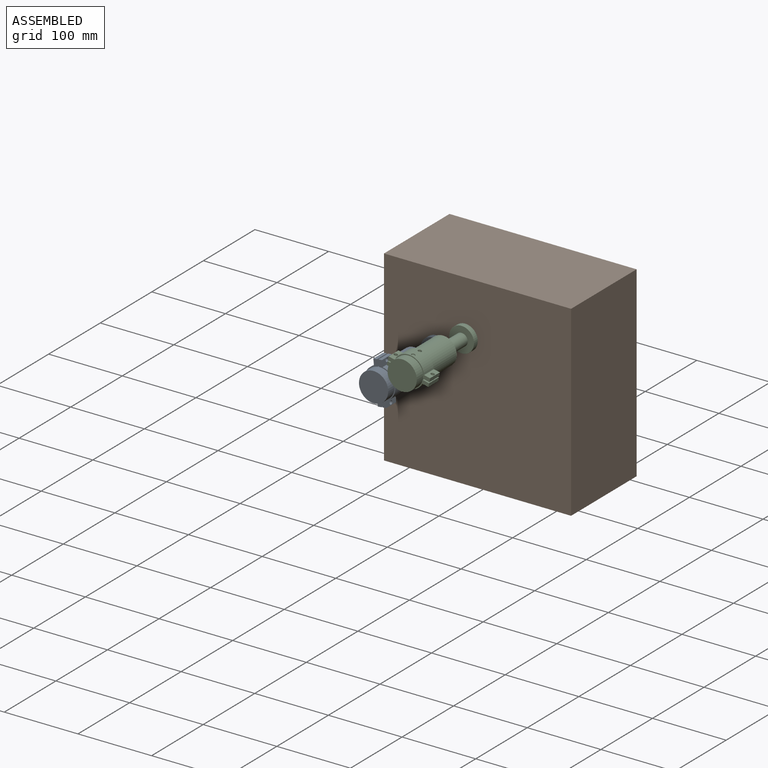
[diagram: assembled view]
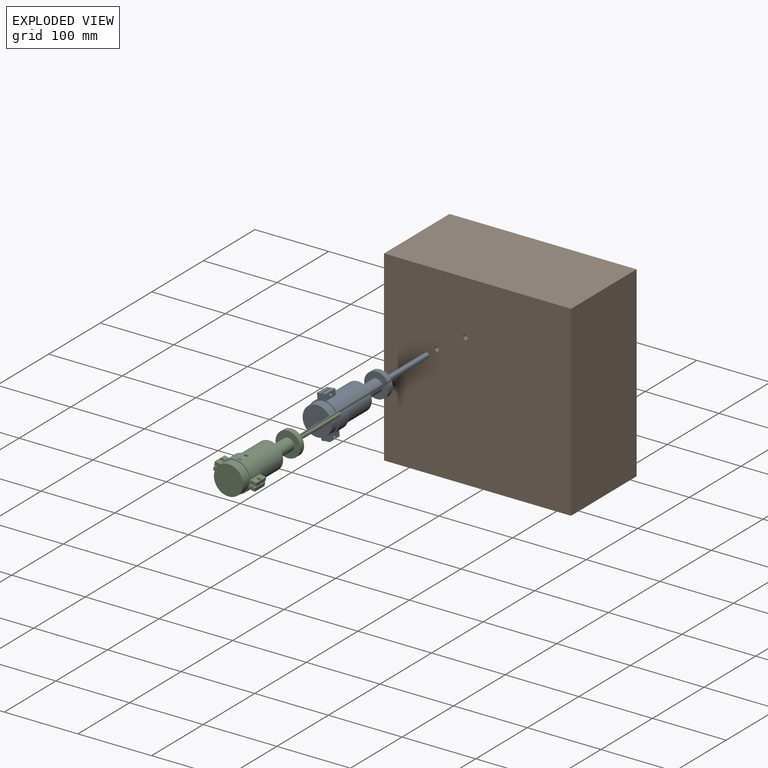
[diagram: exploded view]
GUIDED TOUR — MATED ASSEMBLY WITH SUBASSEMBLIES (Onshape document 07115e8afe3c7d327636c35b, AutoMate assembly 07115e8afe3c7d327636c35b_34420395dc92f201b934ebf9_98a5e769deac01c4e7849072_default)

This assembly has 7 component occurrences arranged in 3 top-level units: 1 individual components plus 2 subassemblies (S0, S1). The tour has two levels: first the top level, where each subassembly is treated as one rigid unit; then each subassembly is toured internally in its own section (nesting deeper than one subassembly level is flattened into its subassembly's section).

Components are labeled P0..P6 across the whole record; subassembly units are labeled S0..S1. A mate is a constraint between two units; its type names the relative motion it leaves free:
  CYLINDRICAL — leaves both rotation about and translation along the listed axis free,
  PARALLEL — keeps the two listed directions parallel,
  PLANAR — leaves sliding in the plane through the listed point (normal = the listed direction) and rotation about that normal free.
Axis/direction vectors are unit vectors and 'through' points are millimeter coordinates, both in the assembly's world frame.

TOP-LEVEL MATES (between units; each subassembly's internal mates are listed in its own section)
  1. PLANAR "Planar 2": S1 <-> P1, direction (0.000, 1.000, 0.000) through (-115.39, -126.83, 44.10) mm
  2. PLANAR "Planar 1": S0 <-> P1, direction (0.000, 1.000, 0.000) through (-154.22, -126.83, 19.44) mm
  3. CYLINDRICAL "Cylindrical 1": S0 <-> P1, axis (0.000, 1.000, 0.000) through (-154.22, -81.75, 19.44) mm
  4. CYLINDRICAL "Cylindrical 2": S1 <-> P1, axis (0.000, 1.000, 0.000) through (-115.39, -81.75, 44.10) mm

TOP-LEVEL ASSEMBLY ORDER
  1. P1 — the base component [order verified]
  2. S1 [order verified]
  3. S0 [order verified]
Order-tag legend:
  [order verified] — this step's position reverses a verified removal order: the component was checked to insert without passing through the ones already placed.

Of the 7 component occurrences, 3 carry the full construction recipe — the FeatureScript program that regenerates the part's solid from scratch; the rest are supplied as boundary geometry only. Each toured unit is shown spotlighted twice — assembled, then exploded with a leader line back to its socket (green = recipe-attached component, orange = geometry-only, blue = subassembly unit; the rest desaturated gray).
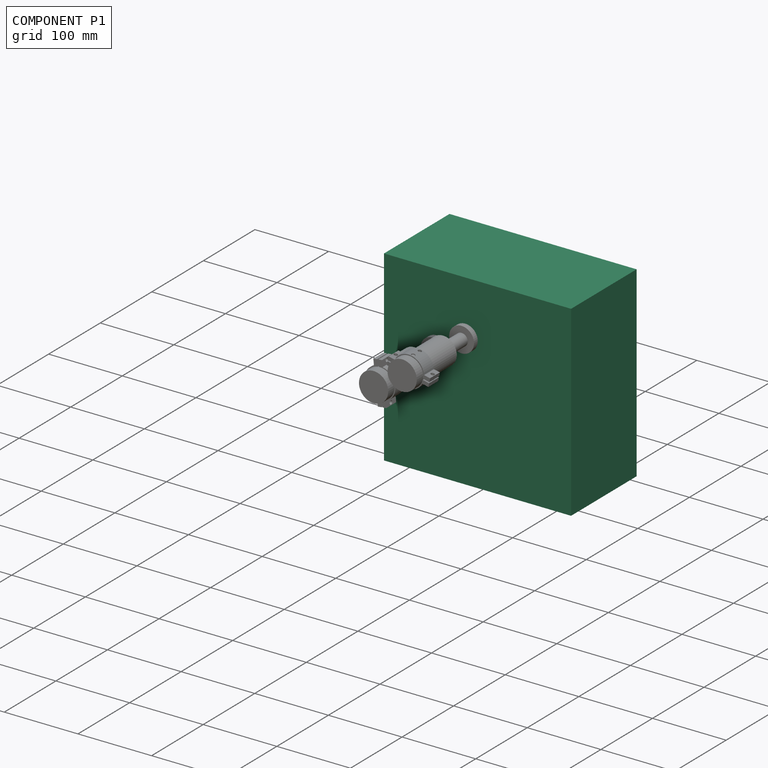
[diagram: component P1 — assembled]
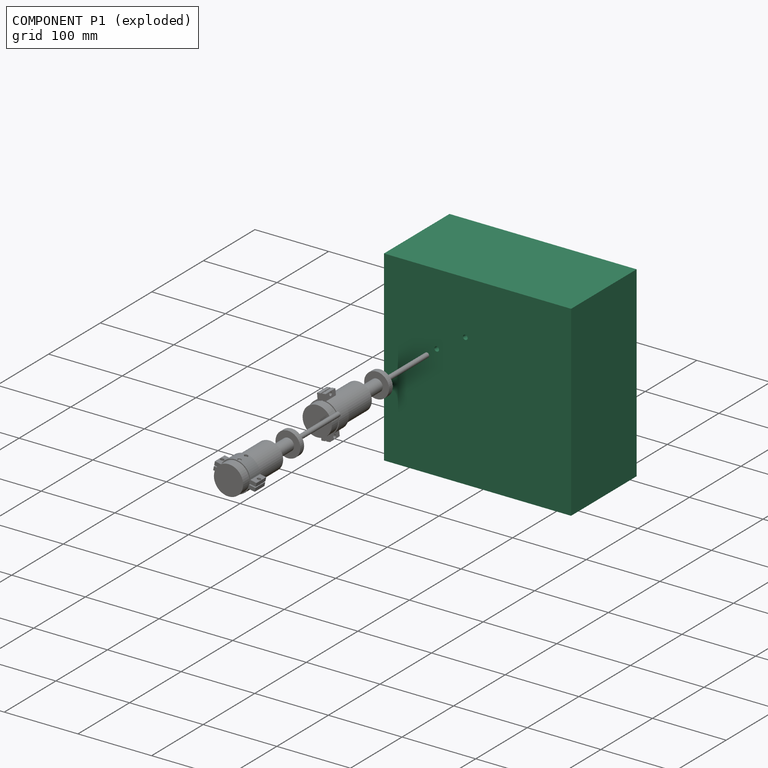
[diagram: component P1 — exploded]
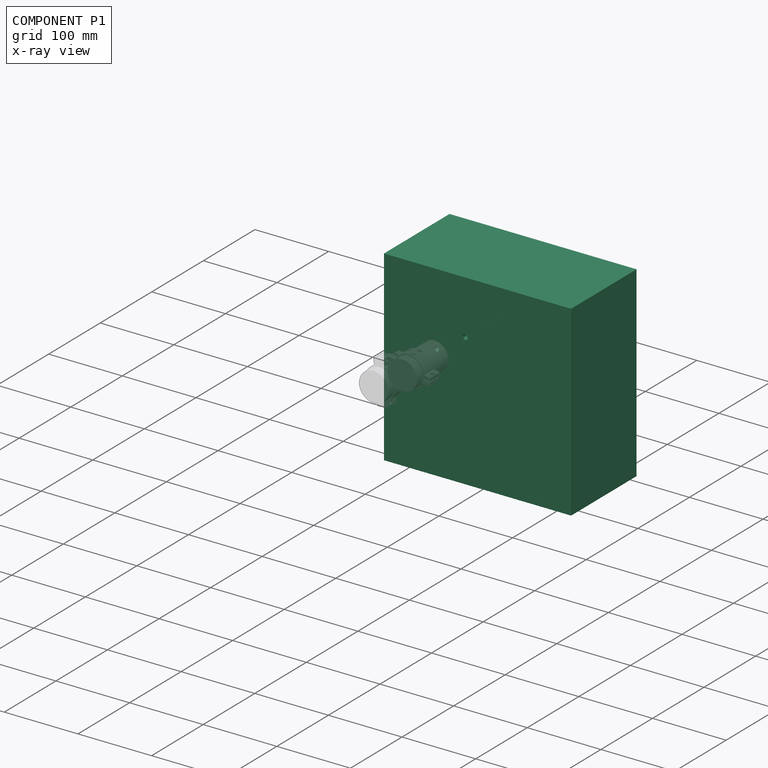
[diagram: component P1 — x-ray view]
COMPONENT P1 — recipe-attached (CADFS 00997449, mesh-verified: the recipe's output STEP matches this component's geometry to below the mesh-comparison resolution (tessellation chordal tolerance ~0.572 mm)).
Held by: PLANAR mate "Planar 2" to P3; PLANAR mate "Planar 1" to P0; CYLINDRICAL mate "Cylindrical 1" to P0; CYLINDRICAL mate "Cylindrical 2" to P3.
Construction recipe (FeatureScript — the CAD program that rebuilds this solid; sketch coordinates are in the units given by the * unit suffixes, e.g. mm):

FeatureScript 1511;
import(path : "onshape/std/geometry.fs", version : "1511.0");
import(path : "onshape/std/common.fs", version : "1511.0");
const mm = millimeter;
const VERTEX = EntityType.VERTEX;
const EDGE = EntityType.EDGE;
const FACE = EntityType.FACE;
const BODY = EntityType.BODY;
function v(x, y){return vector(x, y);}
function OD(order){return orderDisambiguation(order);}
function OSD(set){return originalSetDisambiguation(set);}
function TD(topology){return topologyDisambiguation(topology);}
function TDD(query){return trueDependencyDisambiguation(query);}
function sQuery(a, b, c) {return sketchEntityQuery(a, b, c);}

annotation { "Feature Type Name" : "Feature", "Feature Type Description" : "" }
export const myFeature = defineFeature(function(context is Context, id is Id, definition is map)
    precondition{}
    {
        {
            var Q0;
            Q0=qCreatedBy(makeId("Front.planeOp"),FACE);
            var sketch = newSketch(context, id + "F0", { "sketchPlane" : qUnion([Q0])});
            skLineSegment(sketch, "E0.bottom", {"start": v(-127, 127) * mm, "end": v(127, 127) * mm});
            skLineSegment(sketch, "E0.top", {"start": v(-127, -127) * mm, "end": v(127, -127) * mm});
            skLineSegment(sketch, "E0.left", {"start": v(-127, 127) * mm, "end": v(-127, -127) * mm});
            skLineSegment(sketch, "E0.right", {"start": v(127, 127) * mm, "end": v(127, -127) * mm});
            skPoint(sketch, "E0.middle", {"position": v(0, 0) * mm});
            skCircle(sketch, "E1", {"center": v(-55.42, 28.87) * mm, "radius": 3.18 * mm});
            skCircle(sketch, "E2", {"center": v(-16.6, 53.54) * mm, "radius": 3.18 * mm});
            skSolve(sketch);
        }
        {
            var Q0;
            Q0 = qSketchRegion(id + "F0", true);
            extrude(context, id + "F1", {"entities" : qUnion([Q0]), "depth" : 127 * mm, "offsetDistance" : 25.4 * mm});
        }
    });
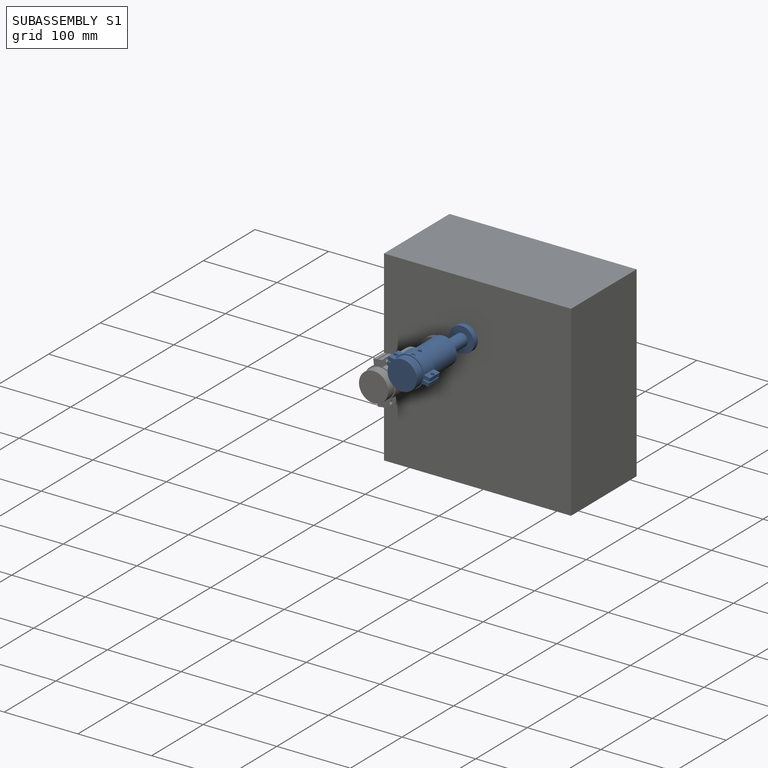
[diagram: subassembly S1 — assembled]
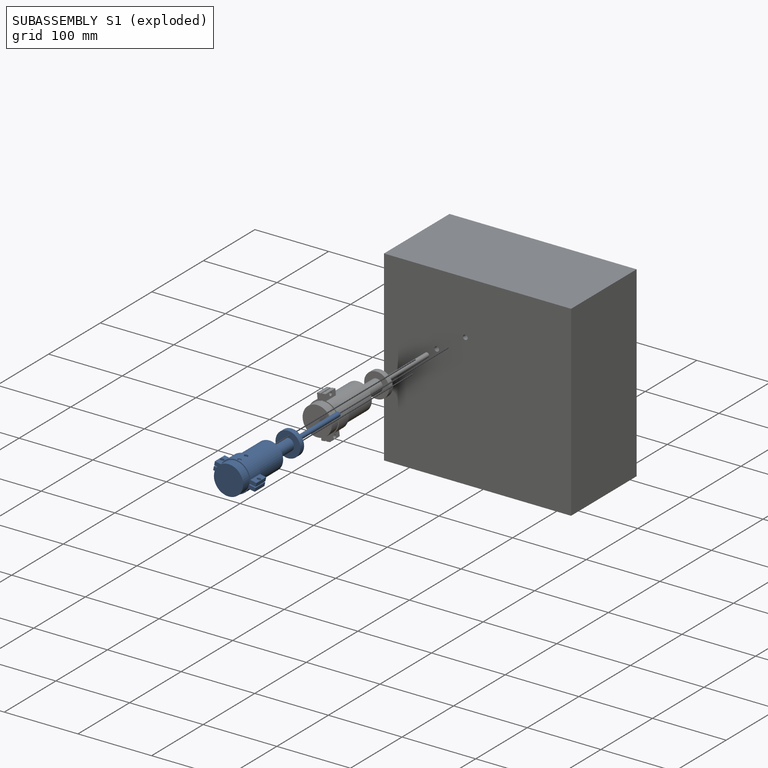
[diagram: subassembly S1 — exploded]
SUBASSEMBLY S1 — 3 components (P3, P5, P6), of which 1 recipe-attached; toured below.
Held by: PLANAR mate "Planar 2" to P1; CYLINDRICAL mate "Cylindrical 2" to P1.
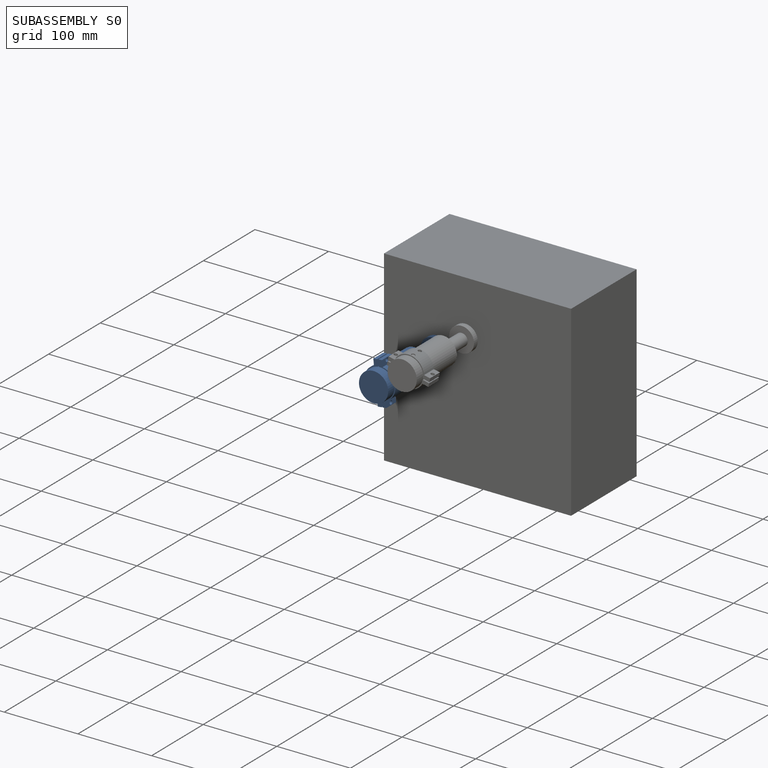
[diagram: subassembly S0 — assembled]
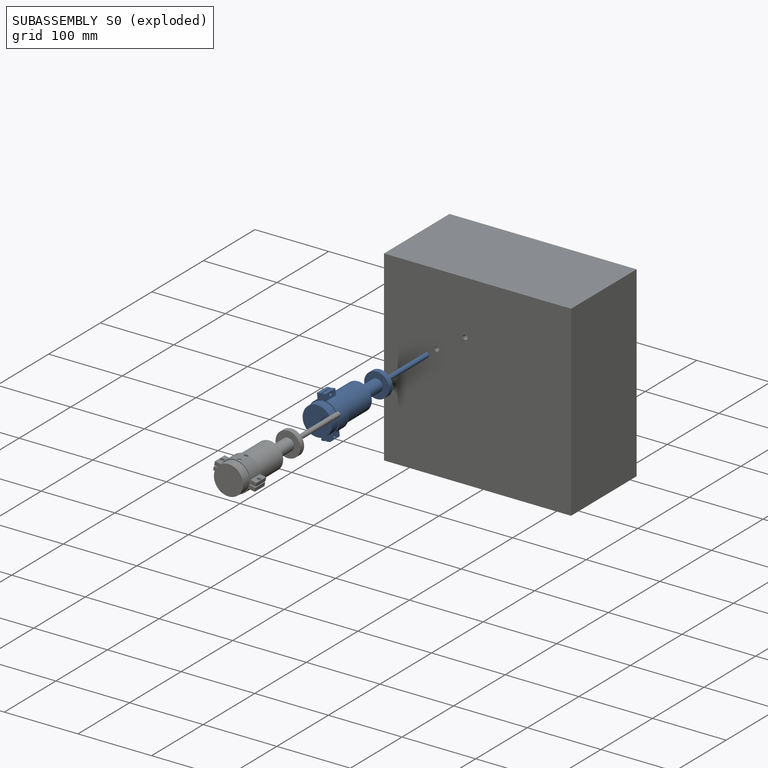
[diagram: subassembly S0 — exploded]
SUBASSEMBLY S0 — 3 components (P0, P2, P4), of which 1 recipe-attached; toured below.
Held by: PLANAR mate "Planar 1" to P1; CYLINDRICAL mate "Cylindrical 1" to P1.
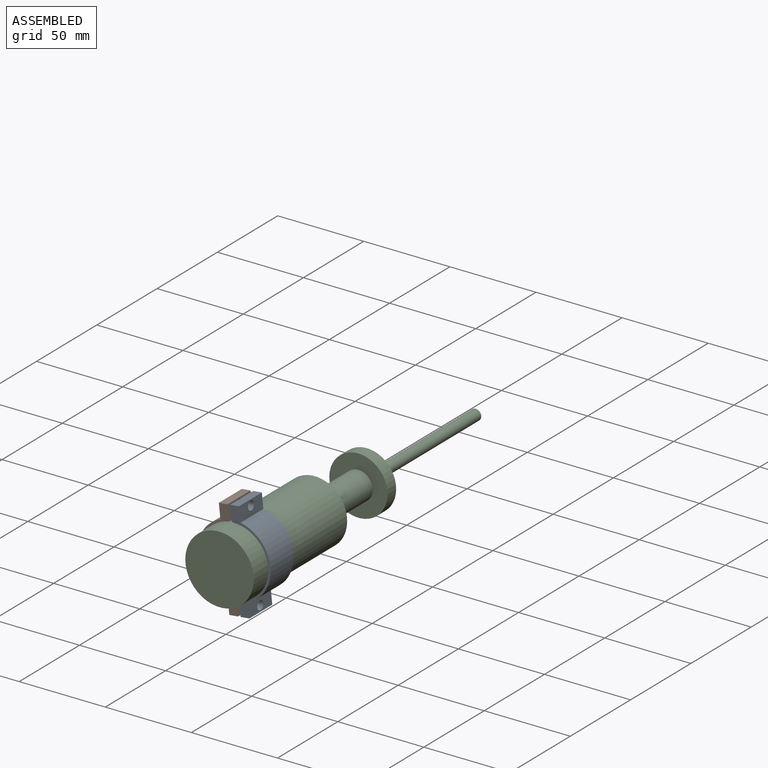
[diagram: subassembly S0 — assembled view]
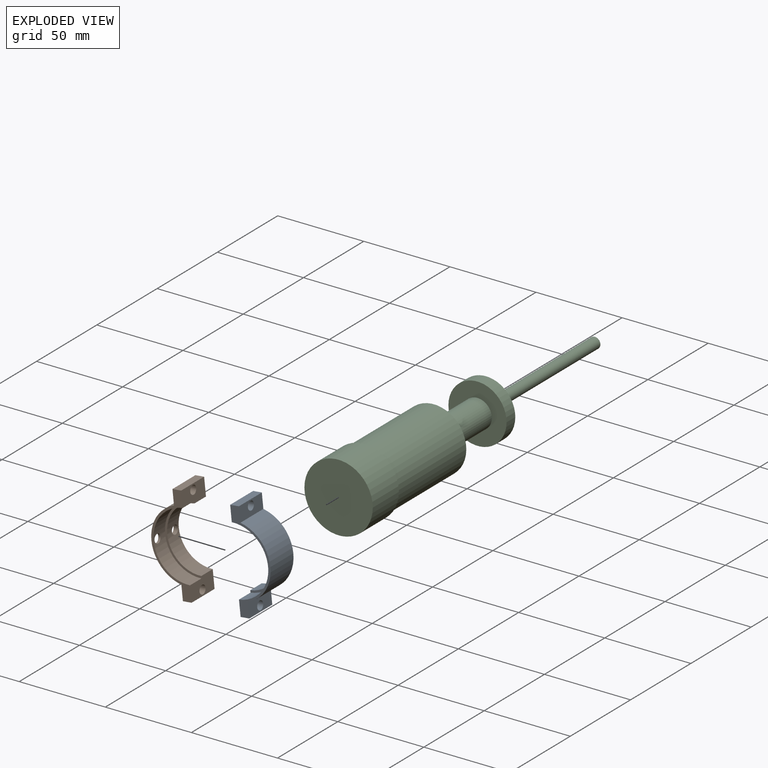
[diagram: subassembly S0 — exploded view]
SUBASSEMBLY S0 TOUR — 3 components, shown here in isolation at its own camera.

INTERNAL MATES
  1. PLANAR "Planar 1": P0 <-> P2, direction (-0.105, 0.000, 0.994) through (-153.97, -227.62, 48.41) mm
  2. PLANAR "Planar 2": P0 <-> P2, direction (0.000, -1.000, 0.000) through (-147.91, -237.14, -8.84) mm
  3. CYLINDRICAL "Cylindrical 1": P0 <-> P4, axis (0.000, -1.000, 0.000) through (-154.22, -222.86, 19.44) mm
  4. PARALLEL "Parallel 1": P0 <-> P2, direction (-0.994, 0.000, -0.105) through (-150.96, -227.28, -4.15) mm
  5. PLANAR "Planar 1": P0 <-> P4, direction (0.000, -1.000, 0.000) through (-151.44, -227.62, 0.38) mm
  6. PLANAR "Planar 1": P0 <-> P4, direction (0.000, -1.000, 0.000) through (-151.44, -227.62, 0.38) mm
  7. CYLINDRICAL "Cylindrical 1": P0 <-> P4, axis (0.000, -1.000, 0.000) through (-154.22, -222.86, 19.44) mm
  8. PARALLEL "Parallel 1": P0 <-> P2, direction (-0.994, 0.000, -0.105) through (-150.96, -227.28, -4.15) mm
  9. PLANAR "Planar 2": P0 <-> P2, direction (0.000, -1.000, 0.000) through (-147.91, -237.14, -8.84) mm
  10. PLANAR "Planar 1": P0 <-> P2, direction (-0.105, 0.000, 0.994) through (-153.97, -227.62, 48.41) mm

ASSEMBLY ORDER (within the subassembly)
  1. P0 — the base component [order verified]
  2. P2 [order verified]
  3. P4 [order verified]
(P2, P4 verified with a relaxed clearance tolerance: the source model stores slight part interference there.)
Order-tag legend:
  [order verified] — this step's position reverses a verified removal order: the component was checked to insert without passing through the ones already placed.
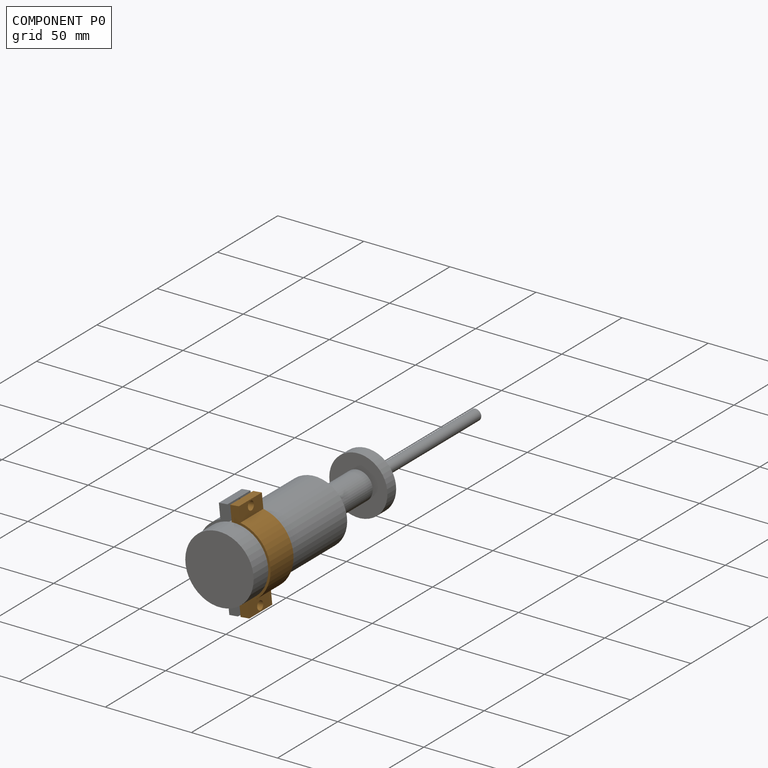
[diagram: component P0 — assembled]
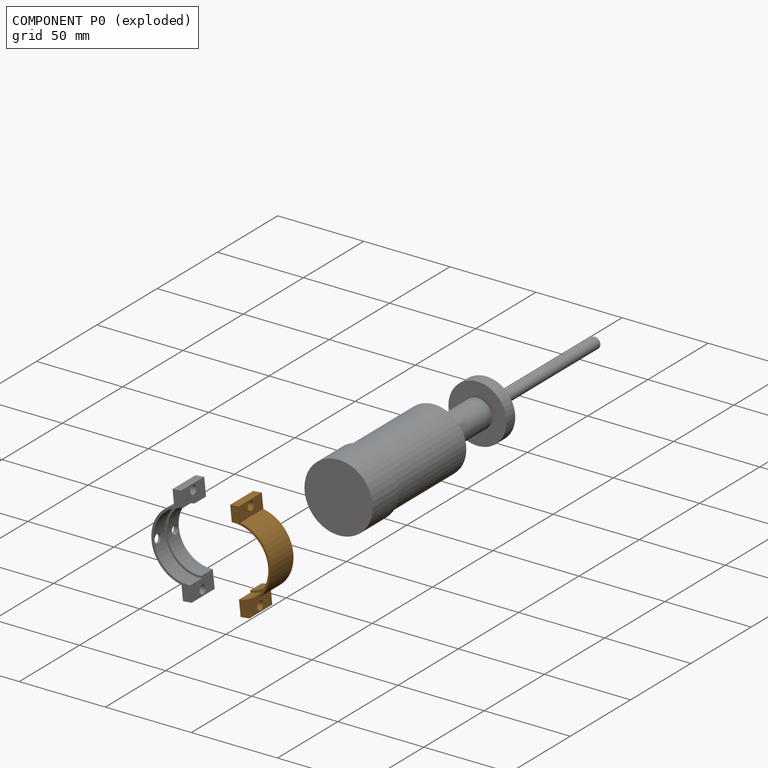
[diagram: component P0 — exploded]
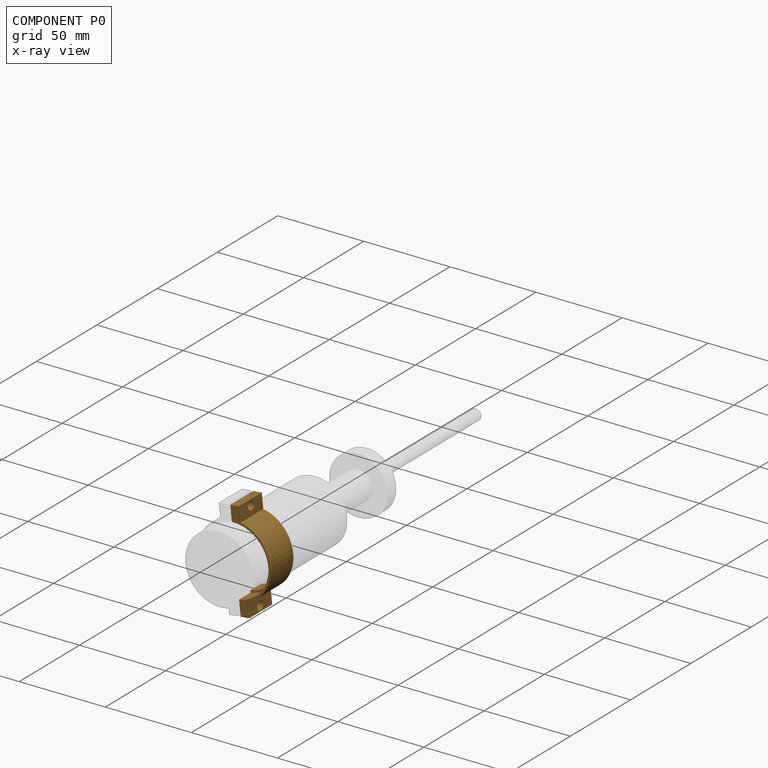
[diagram: component P0 — x-ray view]
COMPONENT P0 — geometry summary (no construction recipe available for this part):
  bounding box: 57.6 x 20.4 x 19.1 mm
  B-rep topology: 1 solid, 14 faces, 72 edges
  volume: 3596 mm^3 (16% of its bounding box)
  symmetry: mirror-symmetric across its x mid-plane
Held by: PLANAR mate "Planar 1" to P2; PLANAR mate "Planar 2" to P2; CYLINDRICAL mate "Cylindrical 1" to P4; PARALLEL mate "Parallel 1" to P2; PLANAR mate "Planar 1" to P4; PLANAR mate "Planar 1" to P4; CYLINDRICAL mate "Cylindrical 1" to P4; PARALLEL mate "Parallel 1" to P2; PLANAR mate "Planar 2" to P2; PLANAR mate "Planar 1" to P2.
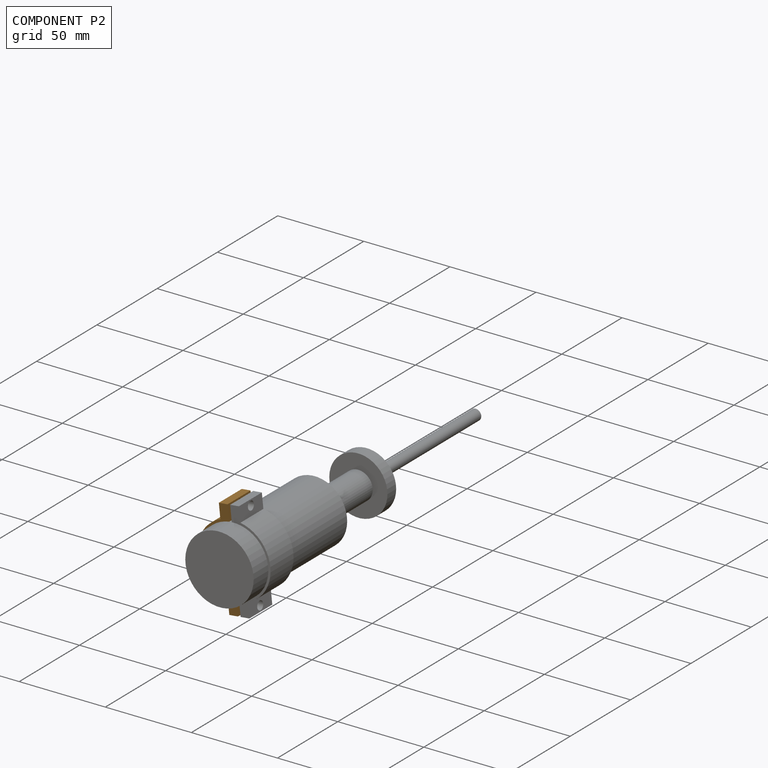
[diagram: component P2 — assembled]
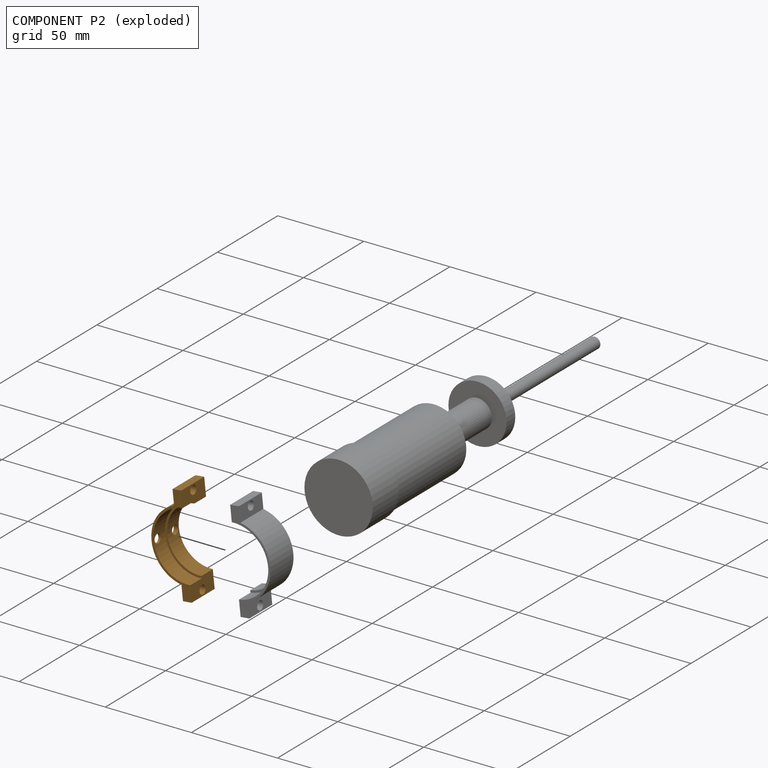
[diagram: component P2 — exploded]
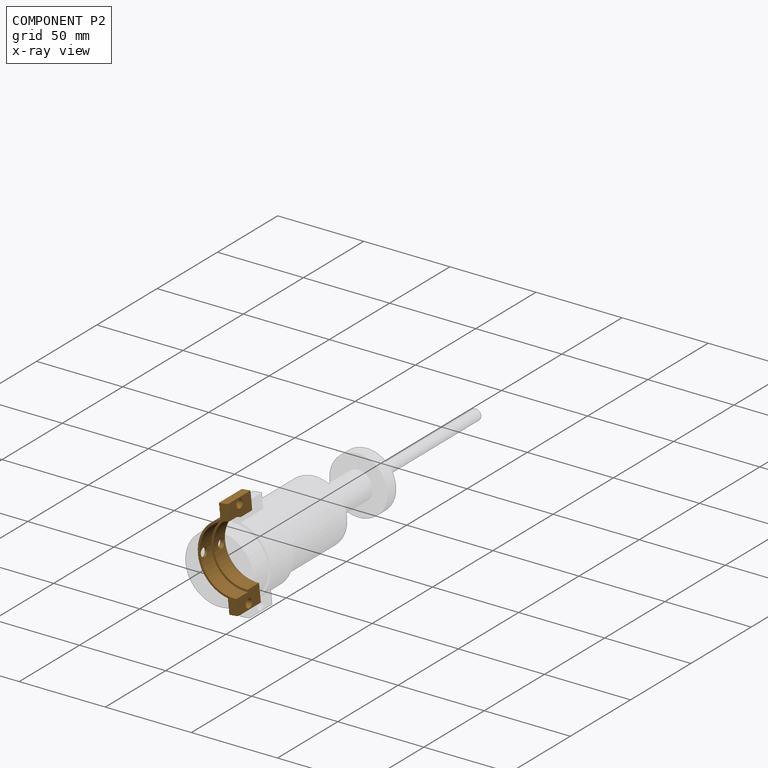
[diagram: component P2 — x-ray view]
COMPONENT P2 — geometry summary (no construction recipe available for this part):
  bounding box: 57.6 x 20.4 x 19.1 mm
  B-rep topology: 1 solid, 16 faces, 88 edges
  volume: 3521 mm^3 (16% of its bounding box)
  symmetry: mirror-symmetric across its x mid-plane
Held by: PLANAR mate "Planar 1" to P0; PLANAR mate "Planar 2" to P0; PARALLEL mate "Parallel 1" to P0; PARALLEL mate "Parallel 1" to P0; PLANAR mate "Planar 2" to P0; PLANAR mate "Planar 1" to P0.
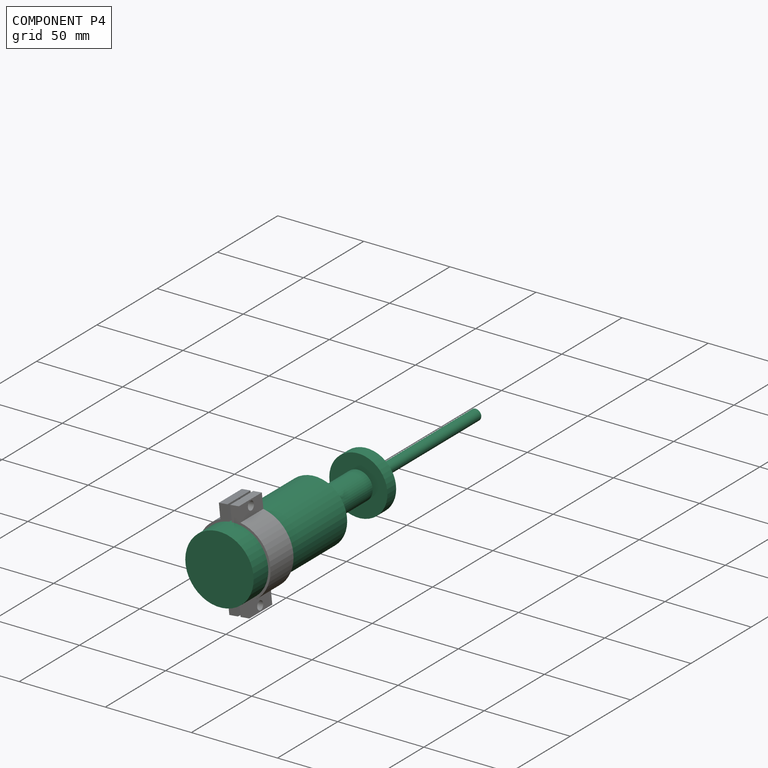
[diagram: component P4 — assembled]
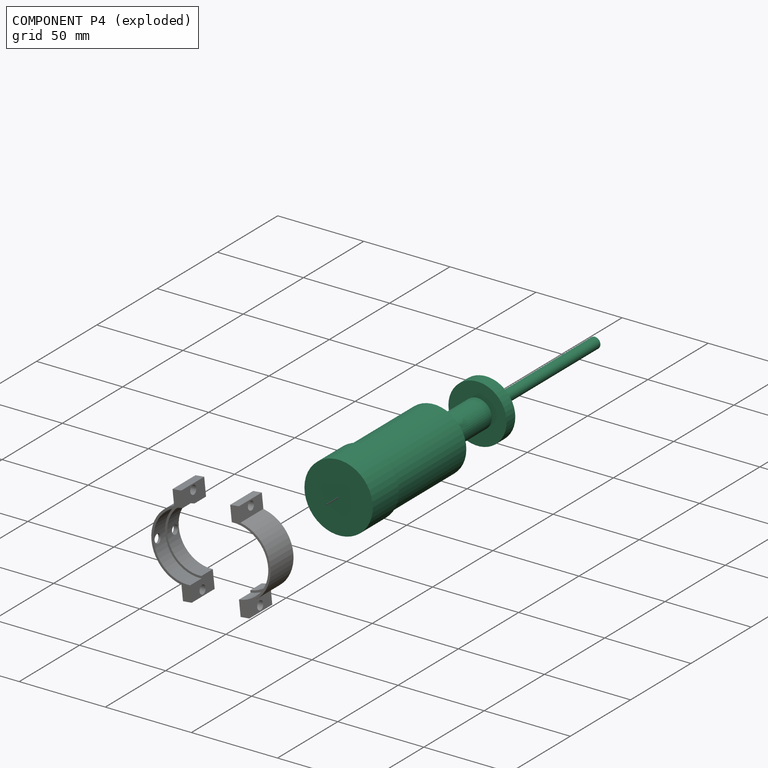
[diagram: component P4 — exploded]
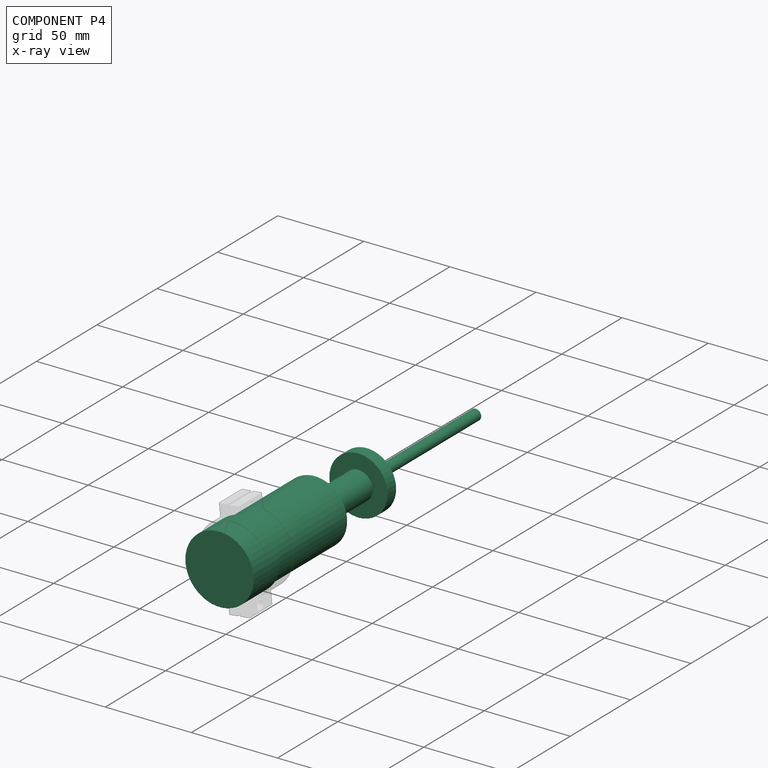
[diagram: component P4 — x-ray view]
COMPONENT P4 — recipe-attached (CADFS 00997448, mesh-verified: the recipe's output STEP matches this component's geometry to below the mesh-comparison resolution (tessellation chordal tolerance ~0.33 mm)).
Held by: CYLINDRICAL mate "Cylindrical 1" to P0; PLANAR mate "Planar 1" to P0; PLANAR mate "Planar 1" to P0; CYLINDRICAL mate "Cylindrical 1" to P0.
Construction recipe (FeatureScript — the CAD program that rebuilds this solid; sketch coordinates are in the units given by the * unit suffixes, e.g. mm):

FeatureScript 1511;
import(path : "onshape/std/geometry.fs", version : "1511.0");
import(path : "onshape/std/common.fs", version : "1511.0");
const mm = millimeter;
const VERTEX = EntityType.VERTEX;
const EDGE = EntityType.EDGE;
const FACE = EntityType.FACE;
const BODY = EntityType.BODY;
function v(x, y){return vector(x, y);}
function OD(order){return orderDisambiguation(order);}
function OSD(set){return originalSetDisambiguation(set);}
function TD(topology){return topologyDisambiguation(topology);}
function TDD(query){return trueDependencyDisambiguation(query);}
function sQuery(a, b, c) {return sketchEntityQuery(a, b, c);}

annotation { "Feature Type Name" : "Feature", "Feature Type Description" : "" }
export const myFeature = defineFeature(function(context is Context, id is Id, definition is map)
    precondition{}
    {
        {
            var Q0;
            Q0=qCreatedBy(makeId("Front.planeOp"),FACE);
            var sketch = newSketch(context, id + "F0", { "sketchPlane" : qUnion([Q0])});
            skLineSegment(sketch, "E0", {"start": v(-90.85, 0) * mm, "end": v(121.75, 0) * mm});
            skLineSegment(sketch, "E1", {"start": v(121.75, 0) * mm, "end": v(121.75, 19.85) * mm});
            skLineSegment(sketch, "E2", {"start": v(121.75, 19.85) * mm, "end": v(100.1, 19.85) * mm});
            skLineSegment(sketch, "E3", {"start": v(100.1, 19.85) * mm, "end": v(100.1, 18.64) * mm});
            skLineSegment(sketch, "E4", {"start": v(100.1, 18.64) * mm, "end": v(42.45, 18.64) * mm});
            skLineSegment(sketch, "E5", {"start": v(42.45, 18.64) * mm, "end": v(42.45, 8.32) * mm});
            skLineSegment(sketch, "E6", {"start": v(42.45, 8.32) * mm, "end": v(6.56, 8.32) * mm});
            skLineSegment(sketch, "E7", {"start": v(6.56, 8.32) * mm, "end": v(6.56, 16.9) * mm});
            skLineSegment(sketch, "E8", {"start": v(6.56, 16.9) * mm, "end": v(-0.68, 16.9) * mm});
            skLineSegment(sketch, "E9", {"start": v(-0.68, 16.9) * mm, "end": v(-0.68, 3.18) * mm});
            skLineSegment(sketch, "E10", {"start": v(-0.68, 3.18) * mm, "end": v(-90.85, 3.17) * mm});
            skLineSegment(sketch, "E11", {"start": v(-90.85, 3.17) * mm, "end": v(-90.85, 0) * mm});
            skSolve(sketch);
        }
        {
            var Q0;
            Q0 = qSketchRegion(id + "F0", true);
            var Q1;
            Q1=sQuery(id+"F0.wireOp",EDGE,"E0");
            revolve(context, id + "F1", {"surfaceOperationType" : NewSurfaceOperationType.NEW, "entities" : qUnion([Q0]), "axis" : qUnion([Q1]), "revolveType" : RevolveType.FULL});
        }
    });
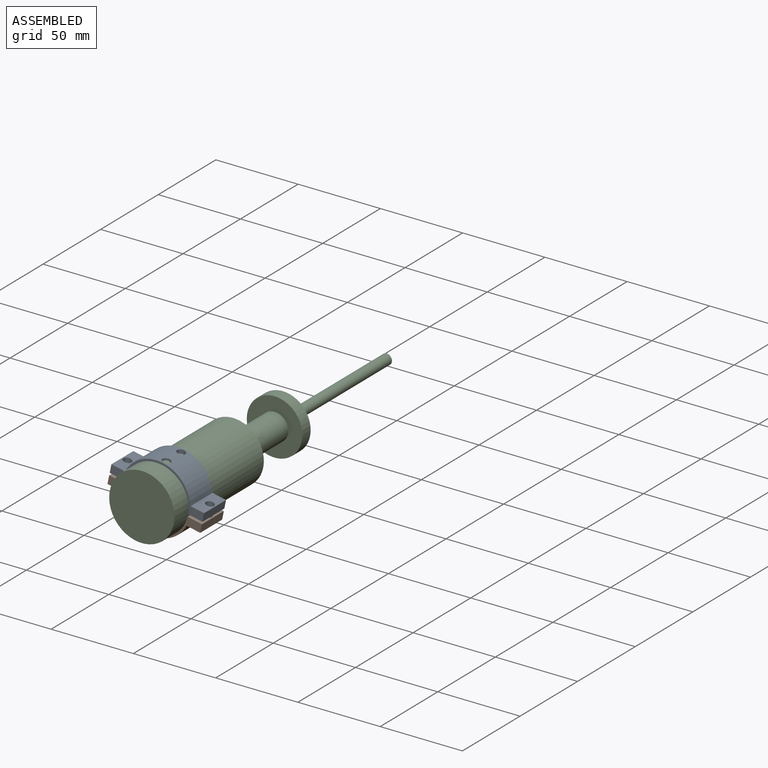
[diagram: subassembly S1 — assembled view]
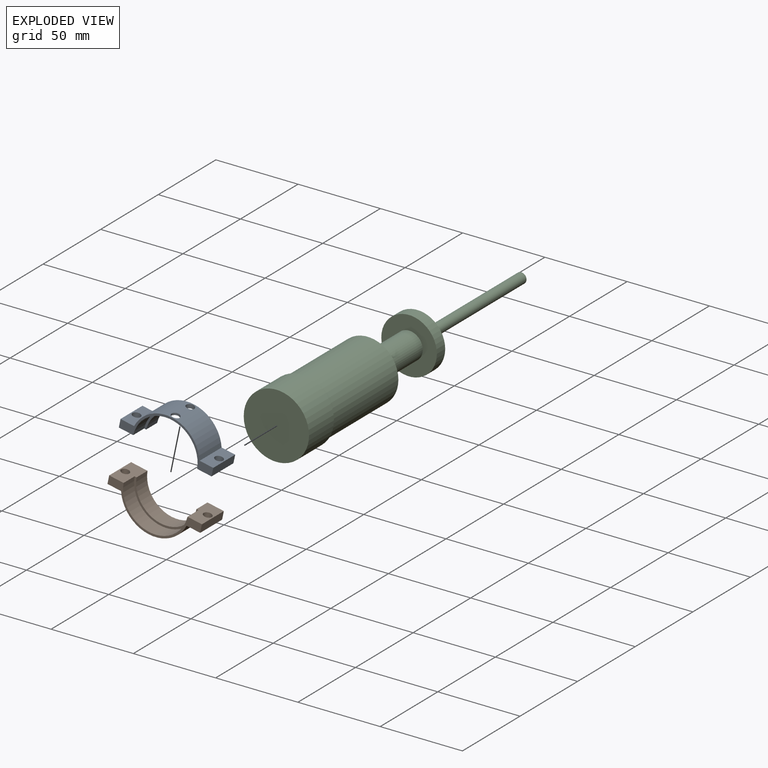
[diagram: subassembly S1 — exploded view]
SUBASSEMBLY S1 TOUR — 3 components, shown here in isolation at its own camera.

INTERNAL MATES
  1. PLANAR "Planar 1": P5 <-> P3, direction (0.979, 0.000, -0.205) through (-87.89, -227.62, 34.96) mm
  2. PLANAR "Planar 2": P5 <-> P3, direction (0.000, -1.000, 0.000) through (-144.24, -237.14, 46.78) mm
  3. CYLINDRICAL "Cylindrical 1": P5 <-> P6, axis (0.000, -1.000, 0.000) through (-115.39, -222.86, 44.10) mm
  4. PARALLEL "Parallel 1": P5 <-> P3, direction (0.205, 0.000, 0.979) through (-138.84, -227.28, 48.24) mm
  5. PLANAR "Planar 1": P5 <-> P6, direction (0.000, -1.000, 0.000) through (-134.38, -227.62, 47.30) mm
  6. PLANAR "Planar 1": P5 <-> P6, direction (0.000, -1.000, 0.000) through (-134.38, -227.62, 47.30) mm
  7. PLANAR "Planar 2": P5 <-> P3, direction (0.000, -1.000, 0.000) through (-144.24, -237.14, 46.78) mm
  8. PARALLEL "Parallel 1": P5 <-> P3, direction (0.205, 0.000, 0.979) through (-138.84, -227.28, 48.24) mm
  9. CYLINDRICAL "Cylindrical 1": P5 <-> P6, axis (0.000, -1.000, 0.000) through (-115.39, -222.86, 44.10) mm
  10. PLANAR "Planar 1": P5 <-> P3, direction (0.979, 0.000, -0.205) through (-87.89, -227.62, 34.96) mm

ASSEMBLY ORDER (within the subassembly)
  1. P5 — the base component [order verified]
  2. P3 [order verified]
  3. P6 [order verified]
(P3, P6 verified with a relaxed clearance tolerance: the source model stores slight part interference there.)
Order-tag legend:
  [order verified] — this step's position reverses a verified removal order: the component was checked to insert without passing through the ones already placed.
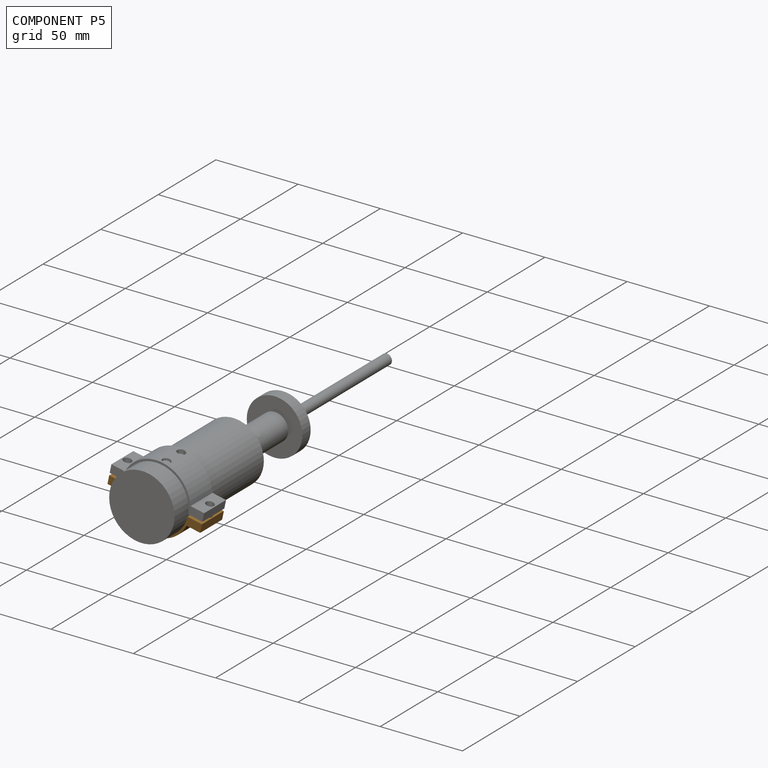
[diagram: component P5 — assembled]
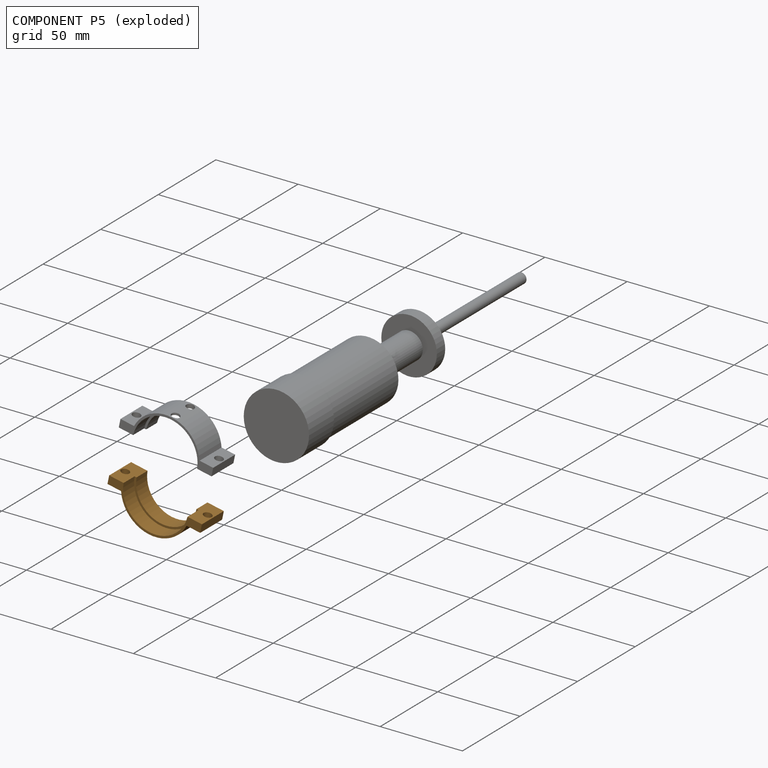
[diagram: component P5 — exploded]
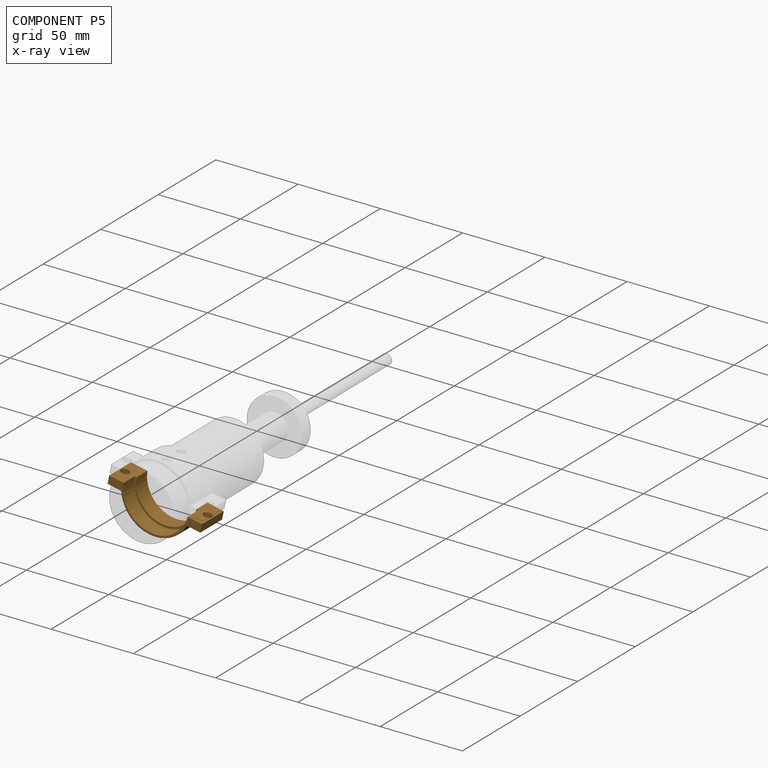
[diagram: component P5 — x-ray view]
COMPONENT P5 — geometry summary (no construction recipe available for this part):
  bounding box: 57.6 x 20.4 x 19.1 mm
  B-rep topology: 1 solid, 14 faces, 72 edges
  volume: 3596 mm^3 (16% of its bounding box)
  symmetry: mirror-symmetric across its x mid-plane
Held by: PLANAR mate "Planar 1" to P3; PLANAR mate "Planar 2" to P3; CYLINDRICAL mate "Cylindrical 1" to P6; PARALLEL mate "Parallel 1" to P3; PLANAR mate "Planar 1" to P6; PLANAR mate "Planar 1" to P6; PLANAR mate "Planar 2" to P3; PARALLEL mate "Parallel 1" to P3; CYLINDRICAL mate "Cylindrical 1" to P6; PLANAR mate "Planar 1" to P3.
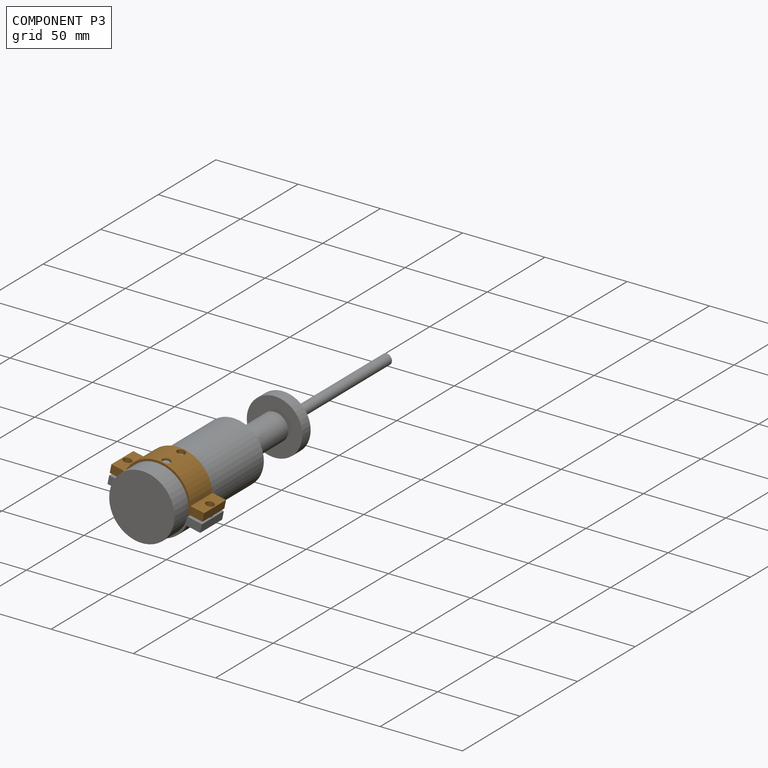
[diagram: component P3 — assembled]
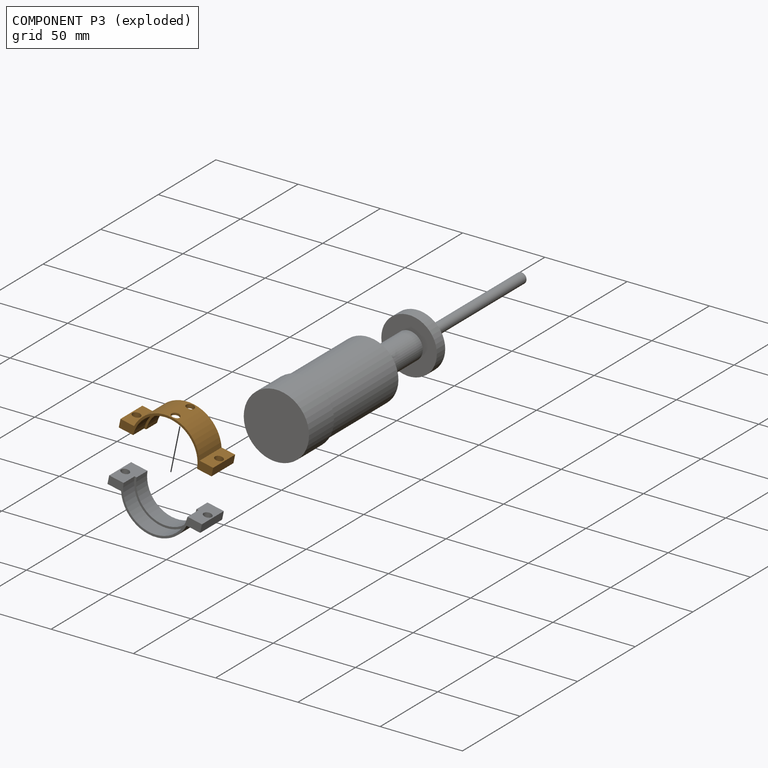
[diagram: component P3 — exploded]
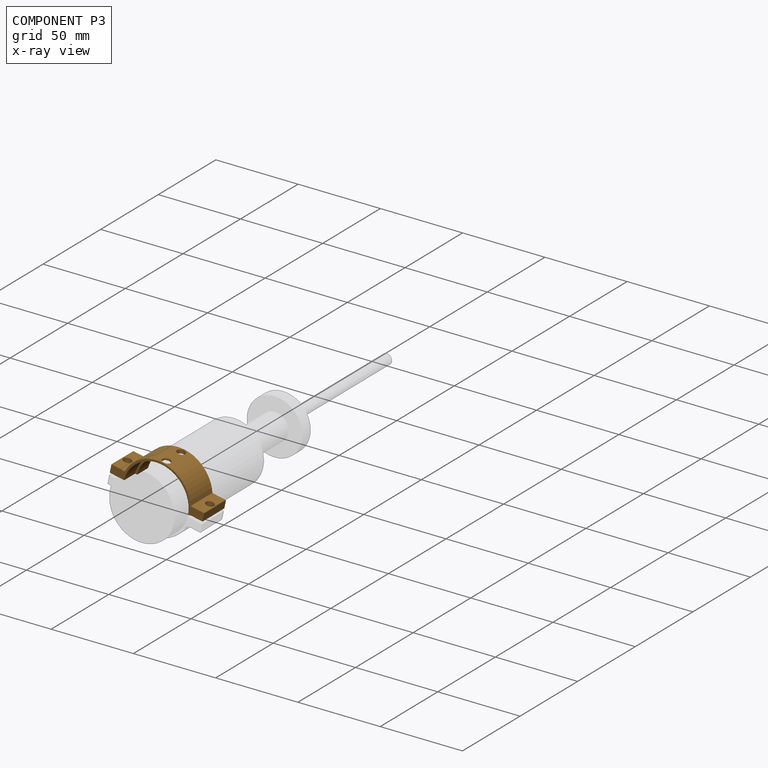
[diagram: component P3 — x-ray view]
COMPONENT P3 — geometry summary (no construction recipe available for this part):
  bounding box: 57.6 x 20.4 x 19.1 mm
  B-rep topology: 1 solid, 16 faces, 88 edges
  volume: 3521 mm^3 (16% of its bounding box)
  symmetry: mirror-symmetric across its x mid-plane
Held by: PLANAR mate "Planar 1" to P5; PLANAR mate "Planar 2" to P5; PARALLEL mate "Parallel 1" to P5; PLANAR mate "Planar 2" to P5; PARALLEL mate "Parallel 1" to P5; PLANAR mate "Planar 1" to P5.
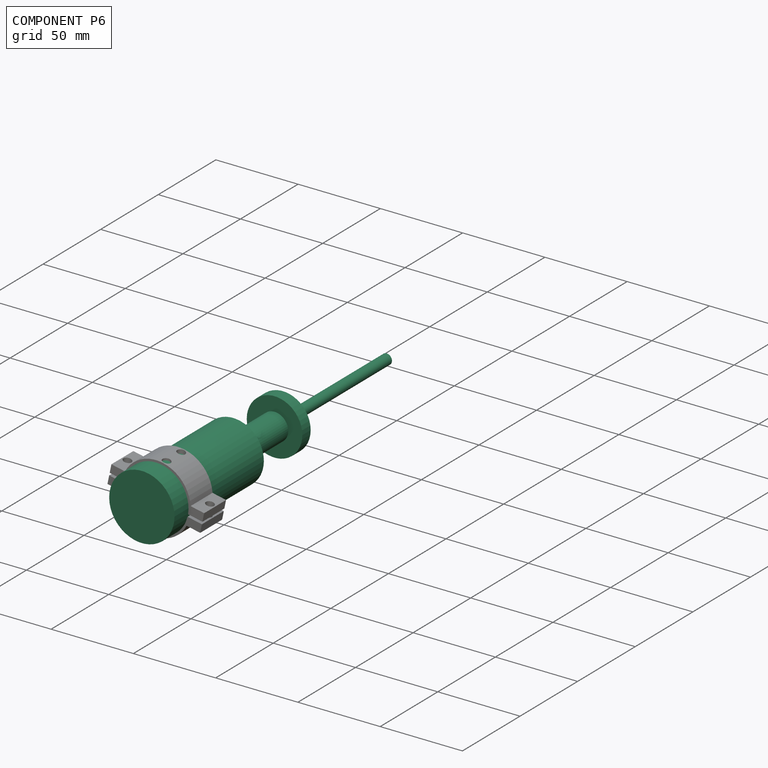
[diagram: component P6 — assembled]
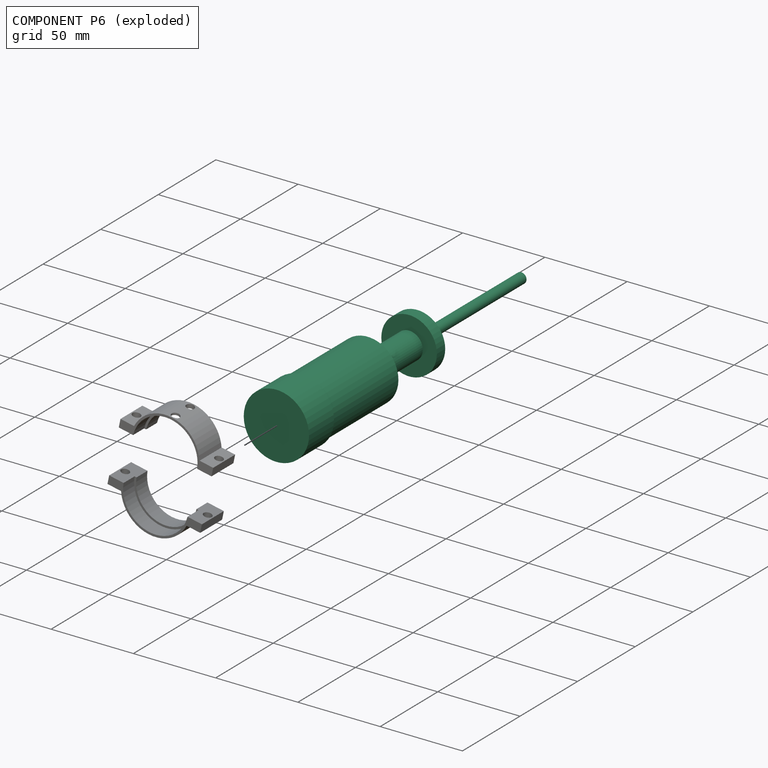
[diagram: component P6 — exploded]
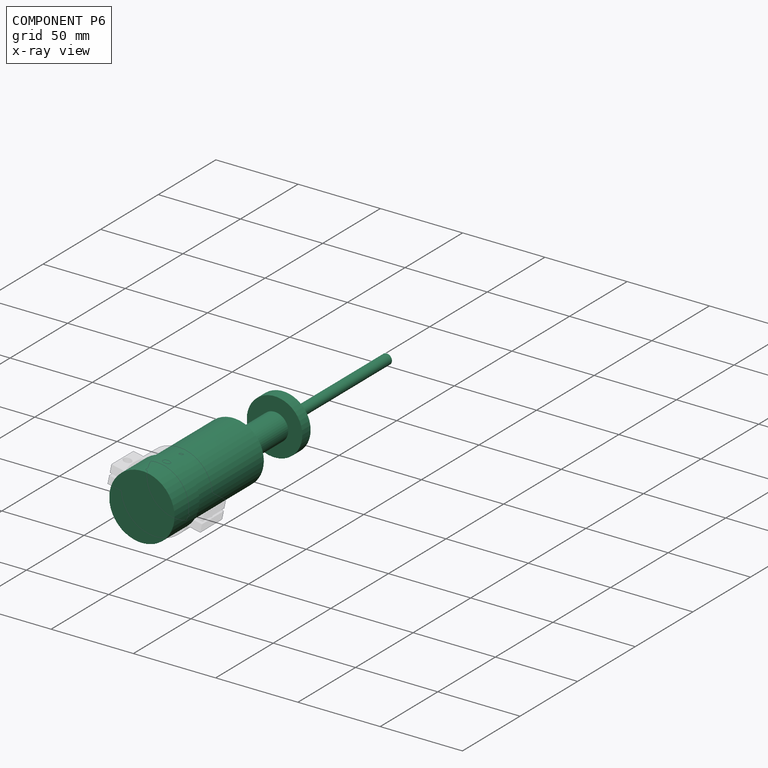
[diagram: component P6 — x-ray view]
COMPONENT P6 — recipe-attached (CADFS 00997448, mesh-verified: the recipe's output STEP matches this component's geometry to below the mesh-comparison resolution (tessellation chordal tolerance ~0.33 mm)).
Held by: CYLINDRICAL mate "Cylindrical 1" to P5; PLANAR mate "Planar 1" to P5; PLANAR mate "Planar 1" to P5; CYLINDRICAL mate "Cylindrical 1" to P5.
Construction recipe (FeatureScript — the CAD program that rebuilds this solid; sketch coordinates are in the units given by the * unit suffixes, e.g. mm):

FeatureScript 1511;
import(path : "onshape/std/geometry.fs", version : "1511.0");
import(path : "onshape/std/common.fs", version : "1511.0");
const mm = millimeter;
const VERTEX = EntityType.VERTEX;
const EDGE = EntityType.EDGE;
const FACE = EntityType.FACE;
const BODY = EntityType.BODY;
function v(x, y){return vector(x, y);}
function OD(order){return orderDisambiguation(order);}
function OSD(set){return originalSetDisambiguation(set);}
function TD(topology){return topologyDisambiguation(topology);}
function TDD(query){return trueDependencyDisambiguation(query);}
function sQuery(a, b, c) {return sketchEntityQuery(a, b, c);}

annotation { "Feature Type Name" : "Feature", "Feature Type Description" : "" }
export const myFeature = defineFeature(function(context is Context, id is Id, definition is map)
    precondition{}
    {
        {
            var Q0;
            Q0=qCreatedBy(makeId("Front.planeOp"),FACE);
            var sketch = newSketch(context, id + "F0", { "sketchPlane" : qUnion([Q0])});
            skLineSegment(sketch, "E0", {"start": v(-90.85, 0) * mm, "end": v(121.75, 0) * mm});
            skLineSegment(sketch, "E1", {"start": v(121.75, 0) * mm, "end": v(121.75, 19.85) * mm});
            skLineSegment(sketch, "E2", {"start": v(121.75, 19.85) * mm, "end": v(100.1, 19.85) * mm});
            skLineSegment(sketch, "E3", {"start": v(100.1, 19.85) * mm, "end": v(100.1, 18.64) * mm});
            skLineSegment(sketch, "E4", {"start": v(100.1, 18.64) * mm, "end": v(42.45, 18.64) * mm});
            skLineSegment(sketch, "E5", {"start": v(42.45, 18.64) * mm, "end": v(42.45, 8.32) * mm});
            skLineSegment(sketch, "E6", {"start": v(42.45, 8.32) * mm, "end": v(6.56, 8.32) * mm});
            skLineSegment(sketch, "E7", {"start": v(6.56, 8.32) * mm, "end": v(6.56, 16.9) * mm});
            skLineSegment(sketch, "E8", {"start": v(6.56, 16.9) * mm, "end": v(-0.68, 16.9) * mm});
            skLineSegment(sketch, "E9", {"start": v(-0.68, 16.9) * mm, "end": v(-0.68, 3.18) * mm});
            skLineSegment(sketch, "E10", {"start": v(-0.68, 3.18) * mm, "end": v(-90.85, 3.17) * mm});
            skLineSegment(sketch, "E11", {"start": v(-90.85, 3.17) * mm, "end": v(-90.85, 0) * mm});
            skSolve(sketch);
        }
        {
            var Q0;
            Q0 = qSketchRegion(id + "F0", true);
            var Q1;
            Q1=sQuery(id+"F0.wireOp",EDGE,"E0");
            revolve(context, id + "F1", {"surfaceOperationType" : NewSurfaceOperationType.NEW, "entities" : qUnion([Q0]), "axis" : qUnion([Q1]), "revolveType" : RevolveType.FULL});
        }
    });
PROVENANCE & LICENSES
Assembly (occurrences, transforms, mates, per-part STEP geometry): AutoMate dataset, Zenodo record 7776208, CC0.
Construction recipes: CADFS (HuggingFace VladPyatov/CADFS, CC-BY-4.0, layered over the ABC dataset), FeatureScript reconstruction programs keyed by ABC model id.
Join: ABC meta listings map ABC model id -> Onshape documentId; within a shared document, parts are matched by geometric signature (bounding-box dims + volume at 0.1% relative tolerance, exact B-rep face/solid counts).
Verification: 3 of this assembly's 7 components carry a recipe attachment, and every attachment is mesh-verified: the CADFS STEP and the AutoMate member STEP were compared as meshes in their shared local frame (symmetric sampled-point-to-mesh distance); worst across the 3 attachments: below the mesh-comparison resolution (tessellation chordal tolerance ~0.572 mm) on a 381 mm part.
Renders: orthographic iso camera (az 35 / el 25); the floor grid conveys scale (grid pitch printed in each image; no ruler). In the exploded view each component is displaced by its stored offset vector: the offsets alone carry the explosion direction (mate normal/axis signs are not orientation cues and do not encode it), and separation distances are assigned per mate-chain, not proportionally to assembly-order depth.
